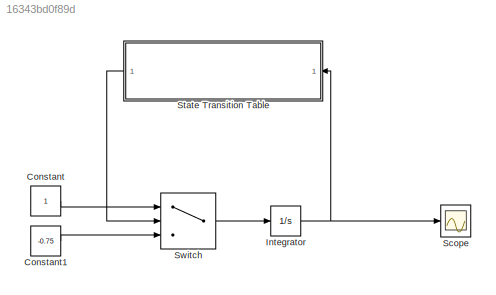
MODEL slx_16343bd0f89d
KIND model
CONFIG AbsTol = auto
CONFIG EnableMultiTasking = off
CONFIG FixedStep = auto
CONFIG MaxStep = 0.001
CONFIG MinStep = auto
CONFIG RelTol = 1e-3
CONFIG SampleTimeConstraint = Unconstrained
CONFIG SolverName = VariableStepAuto
CONFIG StartTime = 0.0
CONFIG StopTime = 10.0
BLOCK [Constant] Constant
BLOCK [Constant] Constant1
  Value = -0.75
BLOCK [Integrator] Integrator
  Ports = [1, 1]
BLOCK [Scope] Scope
  Floating = off
  NumInputPorts = 1
  Ports = [1]
  ScopeSpecificationString = Simulink.scopes.TimeScopeBlockCfg('CurrentConfiguration', extmgr.ConfigurationSet(extmgr.Configuration('Core','General UI',true),extmgr.Configuration('Core','Source UI',true),extmgr.Configuration('Sources','WiredSimulink',true),extmgr.Configuration('Visuals','Time Domain',true,'SerializedDisplays',{struct('MinYLimReal','-1.25017','MaxYLimReal','1.25108','YLabelReal','','MinYLimMag','0.00000','MaxY...<+1330ch>
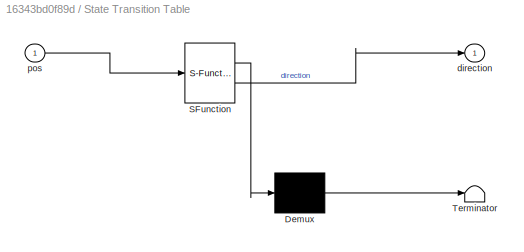
BLOCK [SubSystem] State Transition Table
  ErrorFcn = Stateflow.Translate.translate
  PermitHierarchicalResolution = ExplicitOnly
  Ports = [1, 1]
  RequestExecContextInheritance = off
  SFBlockType = State Transition Table
  TreatAsAtomicUnit = on
BLOCK [Demux] State Transition Table/ Demux 
  Outputs = 1
  Ports = [1, 1]
BLOCK [S-Function] State Transition Table/ SFunction 
  EnableBusSupport = on
  FunctionName = sf_sfun
  PortCounts = [1 2]
  Ports = [1, 2]
  SFcnIsStateOwnerBlock = off
  SFunctionDeploymentMode = off
  Tag = Stateflow S-Function 8
BLOCK [Terminator] State Transition Table/ Terminator 
BLOCK [Outport] State Transition Table/direction
BLOCK [Inport] State Transition Table/pos
BLOCK [Switch] Switch
  Criteria = u2 > Threshold
  InputSameDT = off
  SaturateOnIntegerOverflow = off
LINE Constant1:1 -> Switch:3
LINE Constant:1 -> Switch:1
NET Integrator:1 -> Scope:1, State Transition Table:1
LINE State Transition Table:1 -> Switch:2
LINE Switch:1 -> Integrator:1
note: NET lines group one-source signal fan-out (src -> all destinations, sorted); 1:1 wires keep LINE
CHART State Transition Table states=2 transitions=7
  STATE_LABEL 'forward\nentry:\ndirection=1;'
  STATE_LABEL 'reverse\nentry:\ndirection=0;'
CHART  states=0 transitions=0
